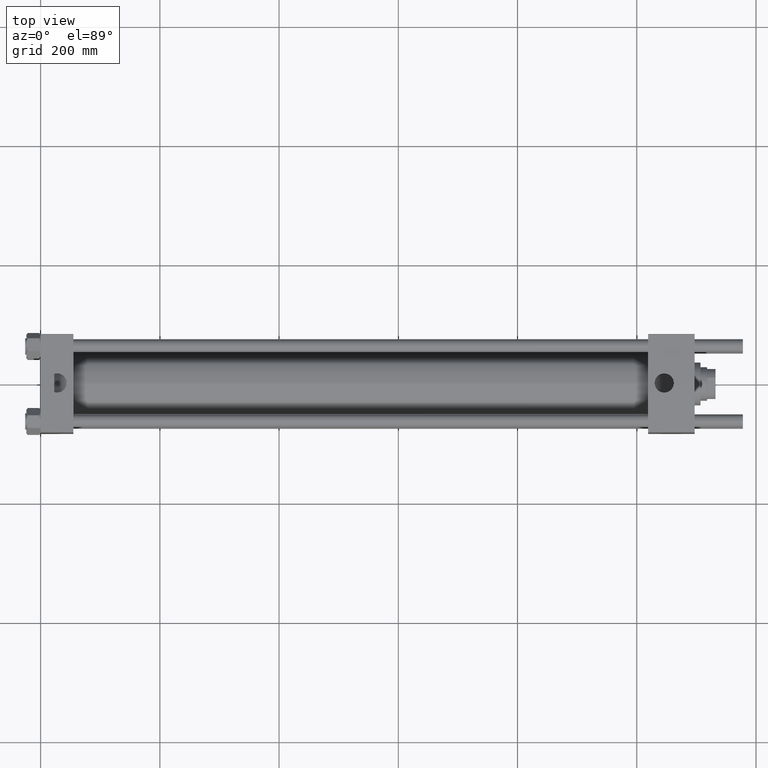
[diagram: clean part render]
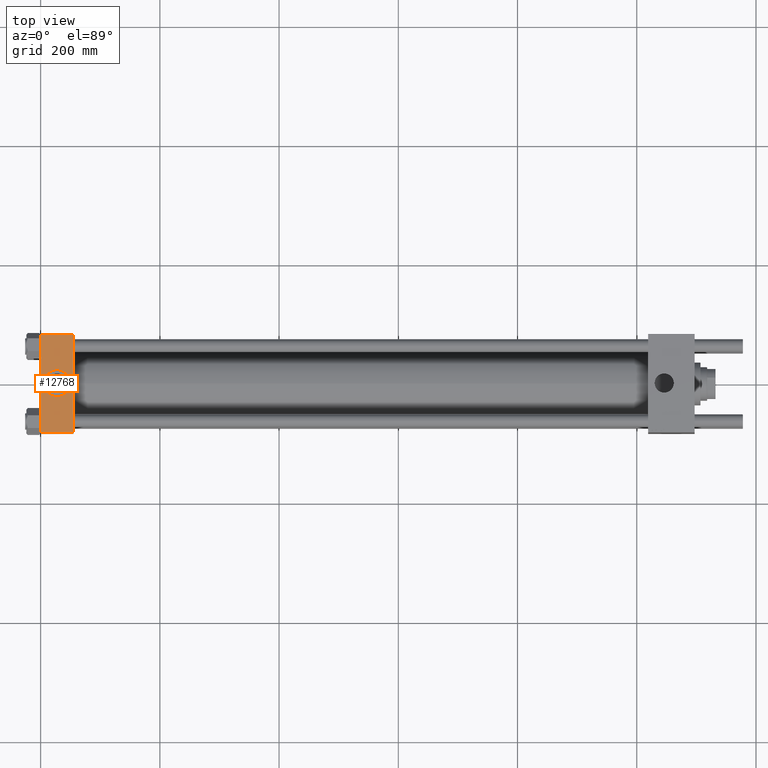
[diagram: same view with one face highlighted and labeled with its STEP entity id]
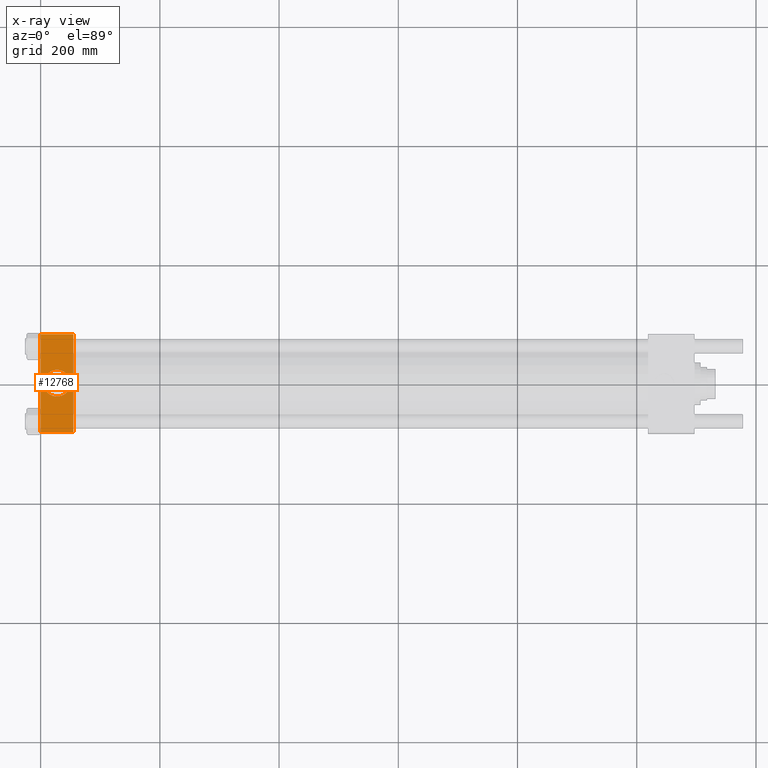
[diagram: x-ray of the same camera — body ghosted, the highlighted face saturated]
A machine part, top view. The second image highlights one B-rep face of the part: STEP entity #12768.
The next image is the same camera in x-ray: the body ghosted, the highlighted face saturated — about 0% of this face is hidden behind the body in this view.
In plain terms, the highlighted planar face has unit normal (0, 0, -1).
Its self-contained STEP definition (entity closure, byte-faithful):
#1689 = LINE ( 'NONE', #7163, #2429 ) ;
#1907 = EDGE_CURVE ( 'NONE', #56017, #30134, #14315, .T. ) ;
#2429 = VECTOR ( 'NONE', #41906, 1000.000000000000000 ) ;
#2580 = EDGE_CURVE ( 'NONE', #30146, #18036, #21539, .T. ) ;
#3674 = CARTESIAN_POINT ( 'NONE',  ( 55.00000000000000000, -81.99999999999997158, 82.50000000000001421 ) ) ;
#5550 = ORIENTED_EDGE ( 'NONE', *, *, #5589, .T. ) ;
#5589 = EDGE_CURVE ( 'NONE', #47135, #6781, #34188, .T. ) ;
#5671 = CARTESIAN_POINT ( 'NONE',  ( 27.50000000000000000, -8.673617379884037050E-15, 82.50000000000001421 ) ) ;
#6254 = EDGE_CURVE ( 'NONE', #47135, #18036, #18683, .T. ) ;
#6781 = VERTEX_POINT ( 'NONE', #16109 ) ;
#7163 = CARTESIAN_POINT ( 'NONE',  ( 0.000000000000000000, 82.50000000000002842, 82.50000000000002842 ) ) ;
#12768 = ADVANCED_FACE ( 'NONE', ( #31788, #49977 ), #55383, .F. ) ;
#13787 = DIRECTION ( 'NONE',  ( 1.000000000000000000, 0.000000000000000000, 0.000000000000000000 ) ) ;
#13827 = CARTESIAN_POINT ( 'NONE',  ( 55.00000000000000000, 82.50000000000002842, 82.50000000000002842 ) ) ;
#14315 = CIRCLE ( 'NONE', #52206, 22.50000000000000355 ) ;
#15710 = ORIENTED_EDGE ( 'NONE', *, *, #2580, .T. ) ;
#16109 = CARTESIAN_POINT ( 'NONE',  ( 0.000000000000000000, 82.00000000000005684, 82.50000000000002842 ) ) ;
#17209 = CARTESIAN_POINT ( 'NONE',  ( 55.00000000000000000, 82.00000000000005684, 82.50000000000002842 ) ) ;
#18036 = VERTEX_POINT ( 'NONE', #3674 ) ;
#18683 = LINE ( 'NONE', #53976, #31078 ) ;
#20328 = CARTESIAN_POINT ( 'NONE',  ( 50.00000000000000000, -8.673617379884037050E-15, 82.50000000000001421 ) ) ;
#21539 = LINE ( 'NONE', #47849, #42041 ) ;
#22102 = EDGE_LOOP ( 'NONE', ( #29548, #41023 ) ) ;
#22918 = DIRECTION ( 'NONE',  ( 1.000000000000000000, 0.000000000000000000, 0.000000000000000000 ) ) ;
#23581 = ORIENTED_EDGE ( 'NONE', *, *, #6254, .F. ) ;
#29548 = ORIENTED_EDGE ( 'NONE', *, *, #48562, .F. ) ;
#29583 = AXIS2_PLACEMENT_3D ( 'NONE', #43192, #31044, #22918 ) ;
#30134 = VERTEX_POINT ( 'NONE', #20328 ) ;
#30146 = VERTEX_POINT ( 'NONE', #33641 ) ;
#31044 = DIRECTION ( 'NONE',  ( 0.000000000000000000, 0.000000000000000000, 1.000000000000000000 ) ) ;
#31078 = VECTOR ( 'NONE', #40964, 1000.000000000000000 ) ;
#31497 = DIRECTION ( 'NONE',  ( 0.000000000000000000, 8.410780489584519171E-17, -1.000000000000000000 ) ) ;
#31788 = FACE_BOUND ( 'NONE', #22102, .T. ) ;
#32358 = CIRCLE ( 'NONE', #29583, 22.50000000000000355 ) ;
#33641 = CARTESIAN_POINT ( 'NONE',  ( 0.000000000000000000, -81.99999999999997158, 82.50000000000001421 ) ) ;
#34188 = LINE ( 'NONE', #51816, #42117 ) ;
#35188 = EDGE_CURVE ( 'NONE', #6781, #30146, #1689, .T. ) ;
#35799 = DIRECTION ( 'NONE',  ( 0.000000000000000000, 0.000000000000000000, 1.000000000000000000 ) ) ;
#36699 = DIRECTION ( 'NONE',  ( 0.000000000000000000, 1.000000000000000000, 8.410780489584519171E-17 ) ) ;
#38625 = DIRECTION ( 'NONE',  ( 1.000000000000000000, 0.000000000000000000, 0.000000000000000000 ) ) ;
#39785 = ORIENTED_EDGE ( 'NONE', *, *, #35188, .T. ) ;
#40964 = DIRECTION ( 'NONE',  ( 0.000000000000000000, -1.000000000000000000, -8.410780489584519171E-17 ) ) ;
#41010 = CARTESIAN_POINT ( 'NONE',  ( 4.999999999999993783, -5.918162081802491483E-15, 82.50000000000001421 ) ) ;
#41023 = ORIENTED_EDGE ( 'NONE', *, *, #1907, .F. ) ;
#41906 = DIRECTION ( 'NONE',  ( 0.000000000000000000, -1.000000000000000000, -8.410780489584519171E-17 ) ) ;
#42041 = VECTOR ( 'NONE', #38625, 1000.000000000000000 ) ;
#42117 = VECTOR ( 'NONE', #56458, 1000.000000000000000 ) ;
#43192 = CARTESIAN_POINT ( 'NONE',  ( 27.50000000000000000, -8.673617379884037050E-15, 82.50000000000001421 ) ) ;
#47135 = VERTEX_POINT ( 'NONE', #17209 ) ;
#47849 = CARTESIAN_POINT ( 'NONE',  ( 55.00000000000000000, -81.99999999999997158, 82.50000000000001421 ) ) ;
#48562 = EDGE_CURVE ( 'NONE', #30134, #56017, #32358, .T. ) ;
#49977 = FACE_OUTER_BOUND ( 'NONE', #56116, .T. ) ;
#51816 = CARTESIAN_POINT ( 'NONE',  ( 0.000000000000000000, 82.00000000000005684, 82.50000000000002842 ) ) ;
#52206 = AXIS2_PLACEMENT_3D ( 'NONE', #5671, #35799, #13787 ) ;
#53737 = AXIS2_PLACEMENT_3D ( 'NONE', #13827, #31497, #36699 ) ;
#53976 = CARTESIAN_POINT ( 'NONE',  ( 55.00000000000000000, 82.50000000000002842, 82.50000000000002842 ) ) ;
#55383 = PLANE ( 'NONE',  #53737 ) ;
#56017 = VERTEX_POINT ( 'NONE', #41010 ) ;
#56116 = EDGE_LOOP ( 'NONE', ( #39785, #15710, #23581, #5550 ) ) ;
#56458 = DIRECTION ( 'NONE',  ( -1.000000000000000000, 0.000000000000000000, 0.000000000000000000 ) ) ;